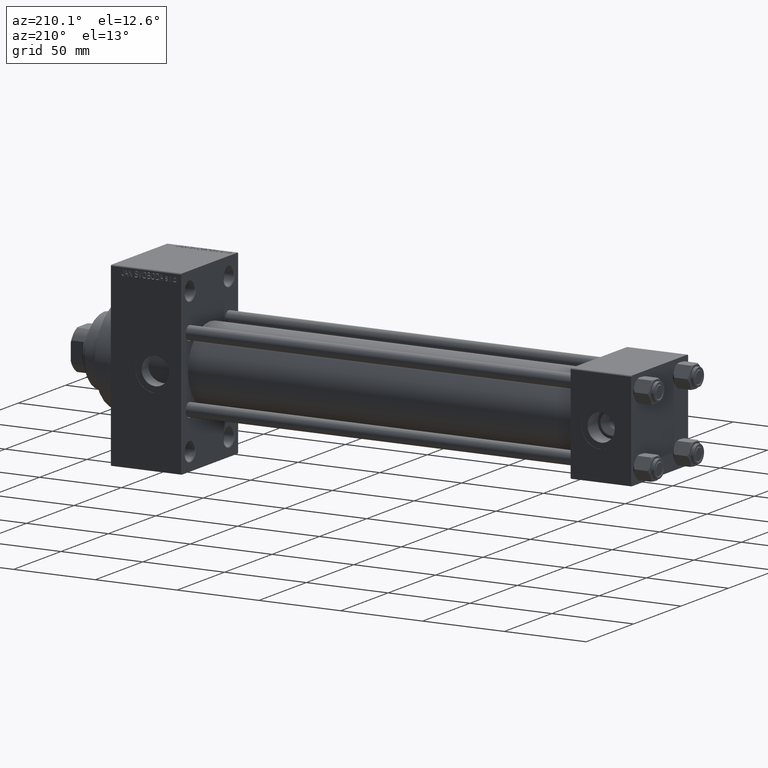
[diagram: clean part render]
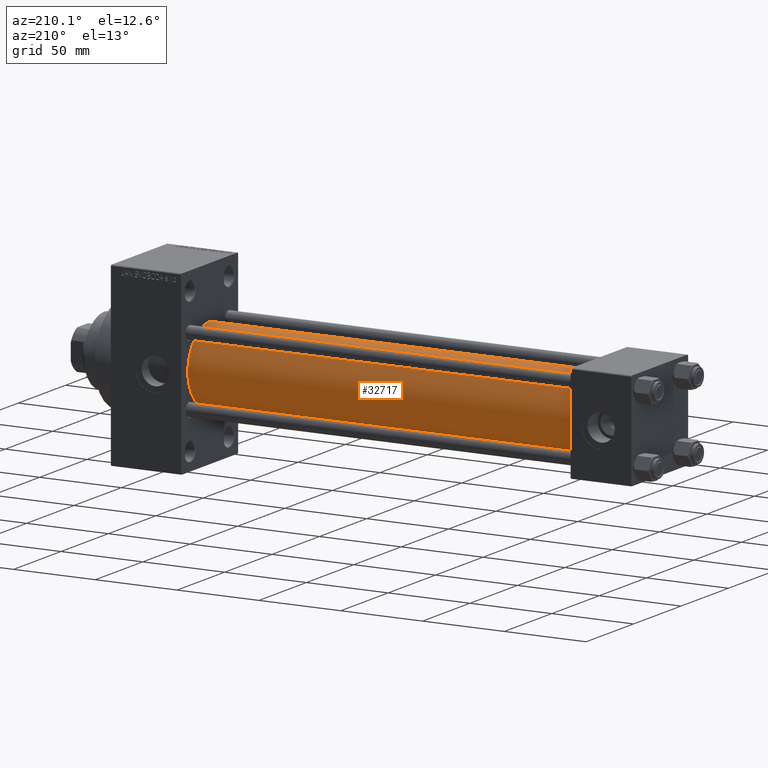
[diagram: same view with one face highlighted and labeled with its STEP entity id]
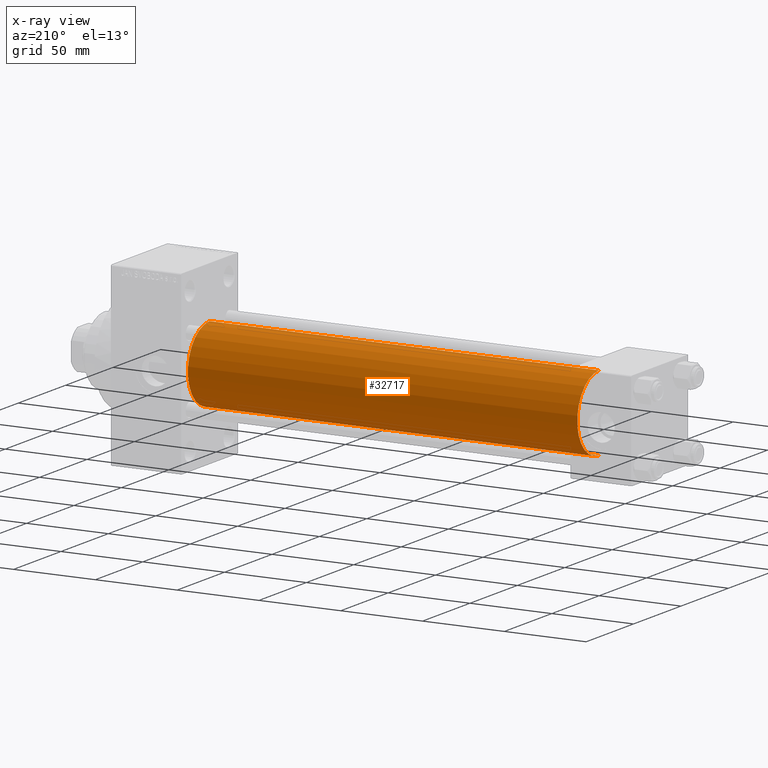
[diagram: x-ray of the same camera — body ghosted, the highlighted face saturated]
A machine part, auxiliary view. The second image highlights one B-rep face of the part: STEP entity #32717.
The next image is the same camera in x-ray: the body ghosted, the highlighted face saturated — about 0% of this face is hidden behind the body in this view.
In plain terms, the highlighted cylindrical surface (partial cylindrical patch) has radius 23 mm, axis along (-1, -0, -0).
Its self-contained STEP definition (entity closure, byte-faithful):
#1239 = VERTEX_POINT ( 'NONE', #16817 ) ;
#1961 = FACE_OUTER_BOUND ( 'NONE', #14114, .T. ) ;
#3438 = DIRECTION ( 'NONE',  ( -1.000000000000000000, -0.000000000000000000, -0.000000000000000000 ) ) ;
#9841 = VECTOR ( 'NONE', #3438, 1000.000000000000000 ) ;
#10915 = LINE ( 'NONE', #41564, #9841 ) ;
#10940 = VERTEX_POINT ( 'NONE', #38313 ) ;
#11384 = CIRCLE ( 'NONE', #22391, 23.00000000000000000 ) ;
#14114 = EDGE_LOOP ( 'NONE', ( #37400, #30791, #44371, #42646 ) ) ;
#16817 = CARTESIAN_POINT ( 'NONE',  ( 37.00000000000000711, 2.146024240737016609E-16, -23.00000000000000000 ) ) ;
#17403 = CARTESIAN_POINT ( 'NONE',  ( 37.00000000000000711, -2.602085213965210642E-15, 0.000000000000000000 ) ) ;
#19310 = VERTEX_POINT ( 'NONE', #23551 ) ;
#20090 = VERTEX_POINT ( 'NONE', #40482 ) ;
#21380 = DIRECTION ( 'NONE',  ( 0.000000000000000000, 0.000000000000000000, 1.000000000000000000 ) ) ;
#22391 = AXIS2_PLACEMENT_3D ( 'NONE', #17403, #32593, #24875 ) ;
#23551 = CARTESIAN_POINT ( 'NONE',  ( 37.00000000000000711, -2.602085213965210642E-15, 23.00000000000000000 ) ) ;
#24643 = EDGE_CURVE ( 'NONE', #10940, #1239, #32844, .T. ) ;
#24875 = DIRECTION ( 'NONE',  ( 0.000000000000000000, 0.000000000000000000, 1.000000000000000000 ) ) ;
#25647 = EDGE_CURVE ( 'NONE', #1239, #19310, #11384, .T. ) ;
#25925 = EDGE_CURVE ( 'NONE', #10940, #20090, #32004, .T. ) ;
#26210 = CARTESIAN_POINT ( 'NONE',  ( 274.9999999999999432, -2.602085213965210642E-15, 0.000000000000000000 ) ) ;
#28043 = VECTOR ( 'NONE', #36341, 1000.000000000000000 ) ;
#28582 = CYLINDRICAL_SURFACE ( 'NONE', #45744, 23.00000000000000000 ) ;
#30202 = DIRECTION ( 'NONE',  ( 1.000000000000000000, 0.000000000000000000, 0.000000000000000000 ) ) ;
#30575 = EDGE_CURVE ( 'NONE', #20090, #19310, #10915, .T. ) ;
#30791 = ORIENTED_EDGE ( 'NONE', *, *, #24643, .T. ) ;
#32004 = CIRCLE ( 'NONE', #41540, 23.00000000000000000 ) ;
#32593 = DIRECTION ( 'NONE',  ( 1.000000000000000000, -0.000000000000000000, 0.000000000000000000 ) ) ;
#32717 = ADVANCED_FACE ( 'NONE', ( #1961 ), #28582, .T. ) ;
#32844 = LINE ( 'NONE', #44311, #28043 ) ;
#36341 = DIRECTION ( 'NONE',  ( -1.000000000000000000, -0.000000000000000000, -0.000000000000000000 ) ) ;
#37400 = ORIENTED_EDGE ( 'NONE', *, *, #25925, .F. ) ;
#38313 = CARTESIAN_POINT ( 'NONE',  ( 274.9999999999999432, 2.146024240737016609E-16, -23.00000000000000000 ) ) ;
#39356 = DIRECTION ( 'NONE',  ( -1.000000000000000000, -0.000000000000000000, -0.000000000000000000 ) ) ;
#40088 = CARTESIAN_POINT ( 'NONE',  ( 274.9999999999999432, -2.602085213965210642E-15, 0.000000000000000000 ) ) ;
#40482 = CARTESIAN_POINT ( 'NONE',  ( 274.9999999999999432, -2.602085213965210642E-15, 23.00000000000000000 ) ) ;
#41540 = AXIS2_PLACEMENT_3D ( 'NONE', #26210, #30202, #45434 ) ;
#41564 = CARTESIAN_POINT ( 'NONE',  ( 274.9999999999999432, -2.602085213965210642E-15, 23.00000000000000000 ) ) ;
#42646 = ORIENTED_EDGE ( 'NONE', *, *, #30575, .F. ) ;
#44311 = CARTESIAN_POINT ( 'NONE',  ( 274.9999999999999432, 2.146024240737016609E-16, -23.00000000000000000 ) ) ;
#44371 = ORIENTED_EDGE ( 'NONE', *, *, #25647, .T. ) ;
#45434 = DIRECTION ( 'NONE',  ( 0.000000000000000000, 0.000000000000000000, -1.000000000000000000 ) ) ;
#45744 = AXIS2_PLACEMENT_3D ( 'NONE', #40088, #39356, #21380 ) ;